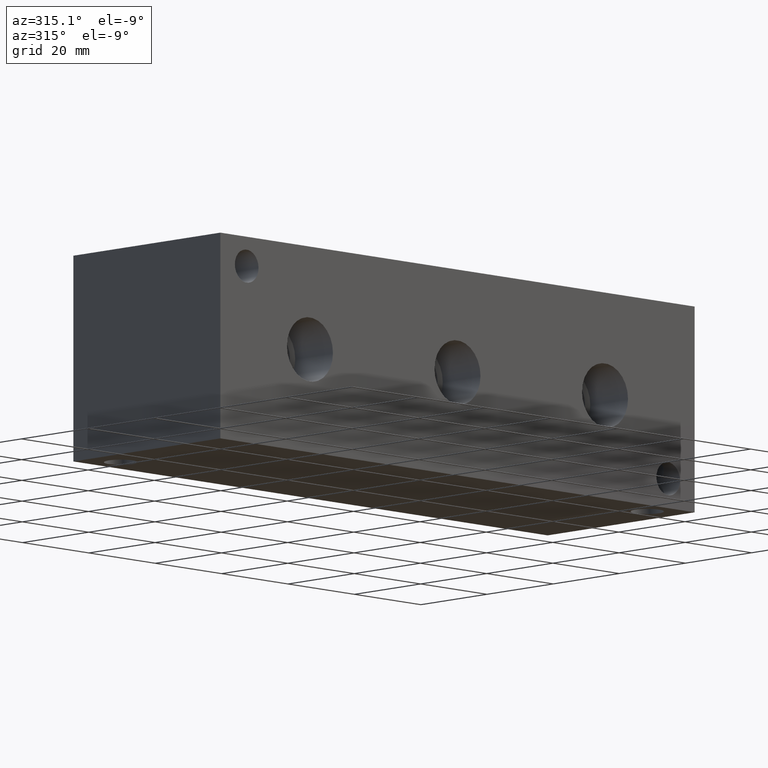
[diagram: clean part render]
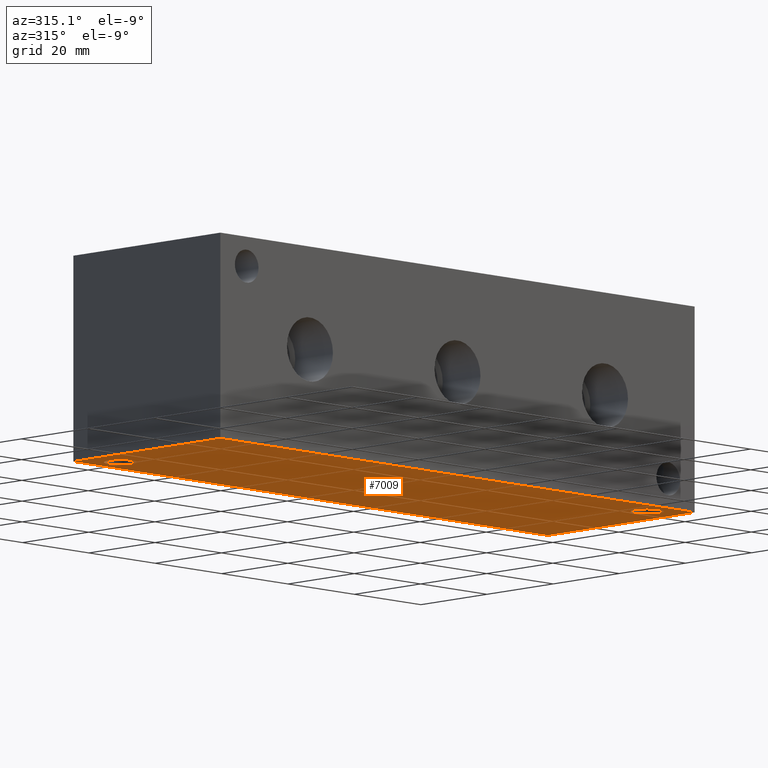
[diagram: same view with one face highlighted and labeled with its STEP entity id]
A machine part, auxiliary view. The second image highlights one B-rep face of the part: STEP entity #7009.
In plain terms, the highlighted planar face has unit normal (0, 0, 1).
Its self-contained STEP definition (entity closure, byte-faithful):
#64=CIRCLE('',#7264,3.5687);
#65=CIRCLE('',#7266,3.5687);
#149=FACE_BOUND('',#1127,.T.);
#150=FACE_BOUND('',#1128,.T.);
#371=PLANE('',#7332);
#725=FACE_OUTER_BOUND('',#1126,.T.);
#1126=EDGE_LOOP('',(#6236,#6237,#6238,#6239));
#1127=EDGE_LOOP('',(#6240));
#1128=EDGE_LOOP('',(#6241));
#1806=LINE('',#11976,#2491);
#1809=LINE('',#11981,#2494);
#1811=LINE('',#11985,#2496);
#1813=LINE('',#11988,#2498);
#2491=VECTOR('',#8620,10.);
#2494=VECTOR('',#8625,10.);
#2496=VECTOR('',#8629,10.);
#2498=VECTOR('',#8633,10.);
#3311=VERTEX_POINT('',#11846);
#3312=VERTEX_POINT('',#11850);
#3355=VERTEX_POINT('',#11974);
#3356=VERTEX_POINT('',#11975);
#3357=VERTEX_POINT('',#11980);
#3358=VERTEX_POINT('',#11984);
#4255=EDGE_CURVE('',#3311,#3311,#64,.T.);
#4257=EDGE_CURVE('',#3312,#3312,#65,.T.);
#4312=EDGE_CURVE('',#3355,#3356,#1806,.T.);
#4315=EDGE_CURVE('',#3357,#3355,#1809,.T.);
#4317=EDGE_CURVE('',#3358,#3357,#1811,.T.);
#4319=EDGE_CURVE('',#3356,#3358,#1813,.T.);
#6236=ORIENTED_EDGE('',*,*,#4319,.F.);
#6237=ORIENTED_EDGE('',*,*,#4312,.F.);
#6238=ORIENTED_EDGE('',*,*,#4315,.F.);
#6239=ORIENTED_EDGE('',*,*,#4317,.F.);
#6240=ORIENTED_EDGE('',*,*,#4255,.T.);
#6241=ORIENTED_EDGE('',*,*,#4257,.T.);
#7009=ADVANCED_FACE('',(#725,#149,#150),#371,.F.);
#7264=AXIS2_PLACEMENT_3D('',#11848,#8473,#8474);
#7266=AXIS2_PLACEMENT_3D('',#11852,#8478,#8479);
#7332=AXIS2_PLACEMENT_3D('',#11990,#8636,#8637);
#8473=DIRECTION('center_axis',(0.,0.,1.));
#8474=DIRECTION('ref_axis',(1.,0.,0.));
#8478=DIRECTION('center_axis',(0.,0.,1.));
#8479=DIRECTION('ref_axis',(1.,0.,0.));
#8620=DIRECTION('',(0.,-1.,0.));
#8625=DIRECTION('',(-1.,0.,0.));
#8629=DIRECTION('',(0.,1.,0.));
#8633=DIRECTION('',(1.,0.,0.));
#8636=DIRECTION('center_axis',(0.,0.,1.));
#8637=DIRECTION('ref_axis',(1.,0.,0.));
#11846=CARTESIAN_POINT('',(4.3561,38.1,0.));
#11848=CARTESIAN_POINT('Origin',(7.9248,38.1,0.));
#11850=CARTESIAN_POINT('',(131.3561,6.35,0.));
#11852=CARTESIAN_POINT('Origin',(134.9248,6.35,0.));
#11974=CARTESIAN_POINT('',(0.,44.45,0.));
#11975=CARTESIAN_POINT('',(0.,0.,0.));
#11976=CARTESIAN_POINT('',(0.,44.45,0.));
#11980=CARTESIAN_POINT('',(142.875,44.45,0.));
#11981=CARTESIAN_POINT('',(142.875,44.45,0.));
#11984=CARTESIAN_POINT('',(142.875,0.,0.));
#11985=CARTESIAN_POINT('',(142.875,0.,0.));
#11988=CARTESIAN_POINT('',(0.,0.,0.));
#11990=CARTESIAN_POINT('Origin',(71.4375,22.225,0.));